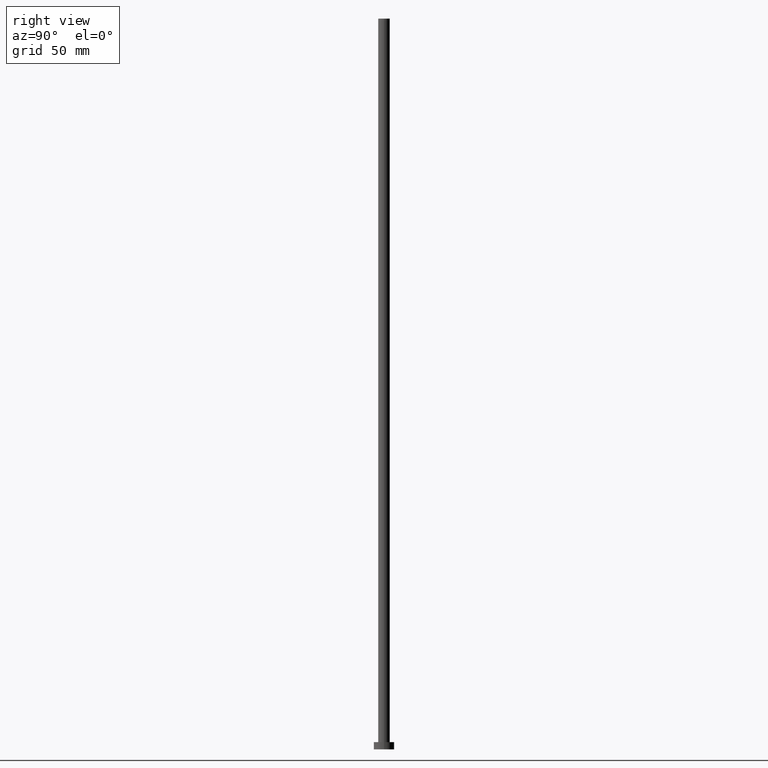
[diagram: clean part render]
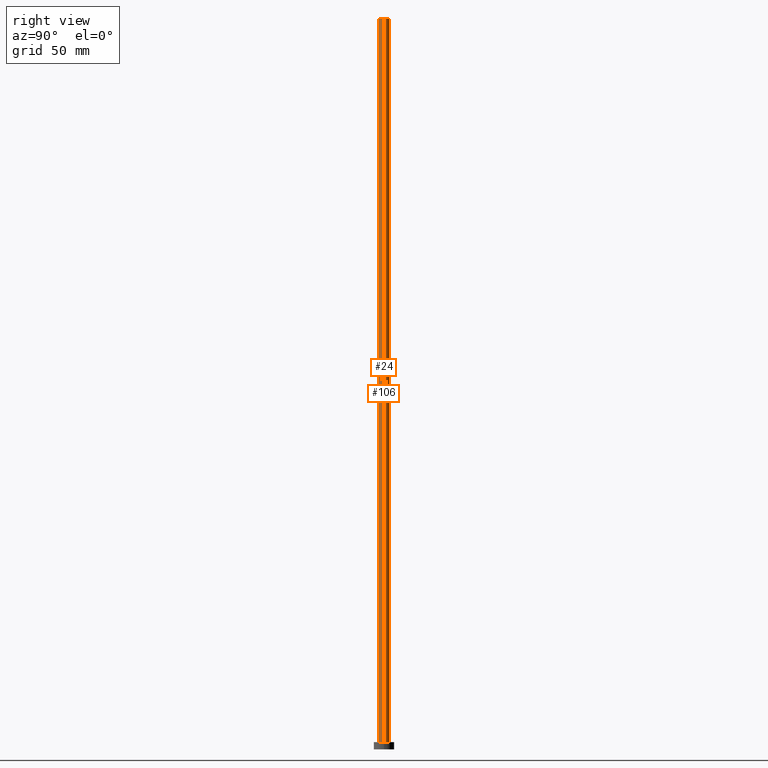
[diagram: same view with one multi-face feature highlighted, each face labeled with its STEP entity id]
A machine part, right view. The highlighted faces form ONE feature: a constant-radius fillet chain: 2 tangent blend faces with common blend radius 4 mm. The faces share edges in the B-rep.
Their STEP definitions:
[1] entity #24 (Cylinder):
#6 = DIRECTION ( 'NONE',  ( -1.000000000000000000, 0.000000000000000000, 0.000000000000000000 ) ) ;
#10 = CARTESIAN_POINT ( 'NONE',  ( 4.000000000000000000, 4.898587196589412829E-16, 500.0000000000000000 ) ) ;
#19 = DIRECTION ( 'NONE',  ( -0.000000000000000000, -0.000000000000000000, -1.000000000000000000 ) ) ;
#21 = ORIENTED_EDGE ( 'NONE', *, *, #84, .F. ) ;
#23 = ORIENTED_EDGE ( 'NONE', *, *, #137, .T. ) ;
#24 = ADVANCED_FACE ( 'NONE', ( #160 ), #213, .T. ) ;
#37 = CARTESIAN_POINT ( 'NONE',  ( -4.000000000000000000, 0.000000000000000000, 500.0000000000000000 ) ) ;
#39 = DIRECTION ( 'NONE',  ( -0.000000000000000000, -0.000000000000000000, -1.000000000000000000 ) ) ;
#44 = LINE ( 'NONE', #113, #204 ) ;
#48 = EDGE_CURVE ( 'NONE', #179, #174, #237, .T. ) ;
#63 = VECTOR ( 'NONE', #82, 1000.000000000000000 ) ;
#73 = ORIENTED_EDGE ( 'NONE', *, *, #95, .T. ) ;
#76 = DIRECTION ( 'NONE',  ( 1.000000000000000000, 0.000000000000000000, 0.000000000000000000 ) ) ;
#82 = DIRECTION ( 'NONE',  ( -0.000000000000000000, -0.000000000000000000, -1.000000000000000000 ) ) ;
#84 = EDGE_CURVE ( 'NONE', #198, #179, #197, .T. ) ;
#87 = CARTESIAN_POINT ( 'NONE',  ( -4.000000000000000000, 0.000000000000000000, 5.000000000000000000 ) ) ;
#95 = EDGE_CURVE ( 'NONE', #108, #174, #110, .T. ) ;
#97 = EDGE_LOOP ( 'NONE', ( #155, #21, #23, #73 ) ) ;
#108 = VERTEX_POINT ( 'NONE', #87 ) ;
#110 = CIRCLE ( 'NONE', #208, 4.000000000000000000 ) ;
#113 = CARTESIAN_POINT ( 'NONE',  ( -4.000000000000000000, 0.000000000000000000, 500.0000000000000000 ) ) ;
#123 = AXIS2_PLACEMENT_3D ( 'NONE', #127, #39, #6 ) ;
#127 = CARTESIAN_POINT ( 'NONE',  ( 0.000000000000000000, 0.000000000000000000, 500.0000000000000000 ) ) ;
#133 = DIRECTION ( 'NONE',  ( 1.000000000000000000, 0.000000000000000000, 0.000000000000000000 ) ) ;
#137 = EDGE_CURVE ( 'NONE', #198, #108, #44, .T. ) ;
#147 = CARTESIAN_POINT ( 'NONE',  ( 4.000000000000000000, 4.898587196589412829E-16, 5.000000000000000000 ) ) ;
#155 = ORIENTED_EDGE ( 'NONE', *, *, #48, .F. ) ;
#160 = FACE_OUTER_BOUND ( 'NONE', #97, .T. ) ;
#166 = CARTESIAN_POINT ( 'NONE',  ( 4.000000000000000000, 4.898587196589412829E-16, 500.0000000000000000 ) ) ;
#174 = VERTEX_POINT ( 'NONE', #147 ) ;
#177 = DIRECTION ( 'NONE',  ( 0.000000000000000000, 0.000000000000000000, 1.000000000000000000 ) ) ;
#179 = VERTEX_POINT ( 'NONE', #166 ) ;
#185 = DIRECTION ( 'NONE',  ( 0.000000000000000000, 0.000000000000000000, 1.000000000000000000 ) ) ;
#189 = CARTESIAN_POINT ( 'NONE',  ( 0.000000000000000000, 0.000000000000000000, 500.0000000000000000 ) ) ;
#197 = CIRCLE ( 'NONE', #231, 4.000000000000000000 ) ;
#198 = VERTEX_POINT ( 'NONE', #37 ) ;
#204 = VECTOR ( 'NONE', #19, 1000.000000000000000 ) ;
#208 = AXIS2_PLACEMENT_3D ( 'NONE', #244, #177, #133 ) ;
#213 = CYLINDRICAL_SURFACE ( 'NONE', #123, 4.000000000000000000 ) ;
#231 = AXIS2_PLACEMENT_3D ( 'NONE', #189, #185, #76 ) ;
#237 = LINE ( 'NONE', #10, #63 ) ;
#244 = CARTESIAN_POINT ( 'NONE',  ( 0.000000000000000000, 0.000000000000000000, 5.000000000000000000 ) ) ;
[2] entity #106 (Cylinder):
#8 = EDGE_CURVE ( 'NONE', #179, #198, #91, .T. ) ;
#9 = DIRECTION ( 'NONE',  ( 1.000000000000000000, 0.000000000000000000, 0.000000000000000000 ) ) ;
#10 = CARTESIAN_POINT ( 'NONE',  ( 4.000000000000000000, 4.898587196589412829E-16, 500.0000000000000000 ) ) ;
#18 = DIRECTION ( 'NONE',  ( -1.000000000000000000, 0.000000000000000000, 0.000000000000000000 ) ) ;
#19 = DIRECTION ( 'NONE',  ( -0.000000000000000000, -0.000000000000000000, -1.000000000000000000 ) ) ;
#22 = AXIS2_PLACEMENT_3D ( 'NONE', #172, #164, #9 ) ;
#25 = EDGE_CURVE ( 'NONE', #174, #108, #35, .T. ) ;
#35 = CIRCLE ( 'NONE', #22, 4.000000000000000000 ) ;
#37 = CARTESIAN_POINT ( 'NONE',  ( -4.000000000000000000, 0.000000000000000000, 500.0000000000000000 ) ) ;
#44 = LINE ( 'NONE', #113, #204 ) ;
#48 = EDGE_CURVE ( 'NONE', #179, #174, #237, .T. ) ;
#63 = VECTOR ( 'NONE', #82, 1000.000000000000000 ) ;
#78 = ORIENTED_EDGE ( 'NONE', *, *, #48, .T. ) ;
#82 = DIRECTION ( 'NONE',  ( -0.000000000000000000, -0.000000000000000000, -1.000000000000000000 ) ) ;
#87 = CARTESIAN_POINT ( 'NONE',  ( -4.000000000000000000, 0.000000000000000000, 5.000000000000000000 ) ) ;
#91 = CIRCLE ( 'NONE', #238, 4.000000000000000000 ) ;
#98 = DIRECTION ( 'NONE',  ( 0.000000000000000000, 0.000000000000000000, 1.000000000000000000 ) ) ;
#106 = ADVANCED_FACE ( 'NONE', ( #150 ), #224, .T. ) ;
#108 = VERTEX_POINT ( 'NONE', #87 ) ;
#113 = CARTESIAN_POINT ( 'NONE',  ( -4.000000000000000000, 0.000000000000000000, 500.0000000000000000 ) ) ;
#115 = ORIENTED_EDGE ( 'NONE', *, *, #25, .T. ) ;
#120 = AXIS2_PLACEMENT_3D ( 'NONE', #199, #239, #18 ) ;
#122 = ORIENTED_EDGE ( 'NONE', *, *, #137, .F. ) ;
#137 = EDGE_CURVE ( 'NONE', #198, #108, #44, .T. ) ;
#147 = CARTESIAN_POINT ( 'NONE',  ( 4.000000000000000000, 4.898587196589412829E-16, 5.000000000000000000 ) ) ;
#150 = FACE_OUTER_BOUND ( 'NONE', #205, .T. ) ;
#163 = DIRECTION ( 'NONE',  ( 1.000000000000000000, 0.000000000000000000, 0.000000000000000000 ) ) ;
#164 = DIRECTION ( 'NONE',  ( 0.000000000000000000, 0.000000000000000000, 1.000000000000000000 ) ) ;
#166 = CARTESIAN_POINT ( 'NONE',  ( 4.000000000000000000, 4.898587196589412829E-16, 500.0000000000000000 ) ) ;
#172 = CARTESIAN_POINT ( 'NONE',  ( 0.000000000000000000, 0.000000000000000000, 5.000000000000000000 ) ) ;
#174 = VERTEX_POINT ( 'NONE', #147 ) ;
#179 = VERTEX_POINT ( 'NONE', #166 ) ;
#198 = VERTEX_POINT ( 'NONE', #37 ) ;
#199 = CARTESIAN_POINT ( 'NONE',  ( 0.000000000000000000, 0.000000000000000000, 500.0000000000000000 ) ) ;
#202 = ORIENTED_EDGE ( 'NONE', *, *, #8, .F. ) ;
#204 = VECTOR ( 'NONE', #19, 1000.000000000000000 ) ;
#205 = EDGE_LOOP ( 'NONE', ( #202, #78, #115, #122 ) ) ;
#210 = CARTESIAN_POINT ( 'NONE',  ( 0.000000000000000000, 0.000000000000000000, 500.0000000000000000 ) ) ;
#224 = CYLINDRICAL_SURFACE ( 'NONE', #120, 4.000000000000000000 ) ;
#237 = LINE ( 'NONE', #10, #63 ) ;
#238 = AXIS2_PLACEMENT_3D ( 'NONE', #210, #98, #163 ) ;
#239 = DIRECTION ( 'NONE',  ( -0.000000000000000000, -0.000000000000000000, -1.000000000000000000 ) ) ;